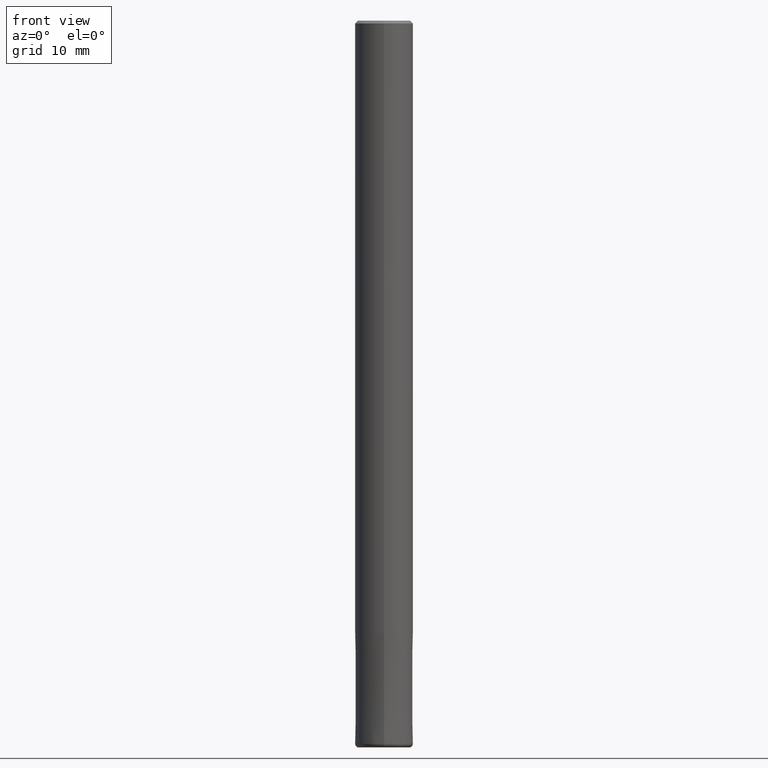
[diagram: clean part render]
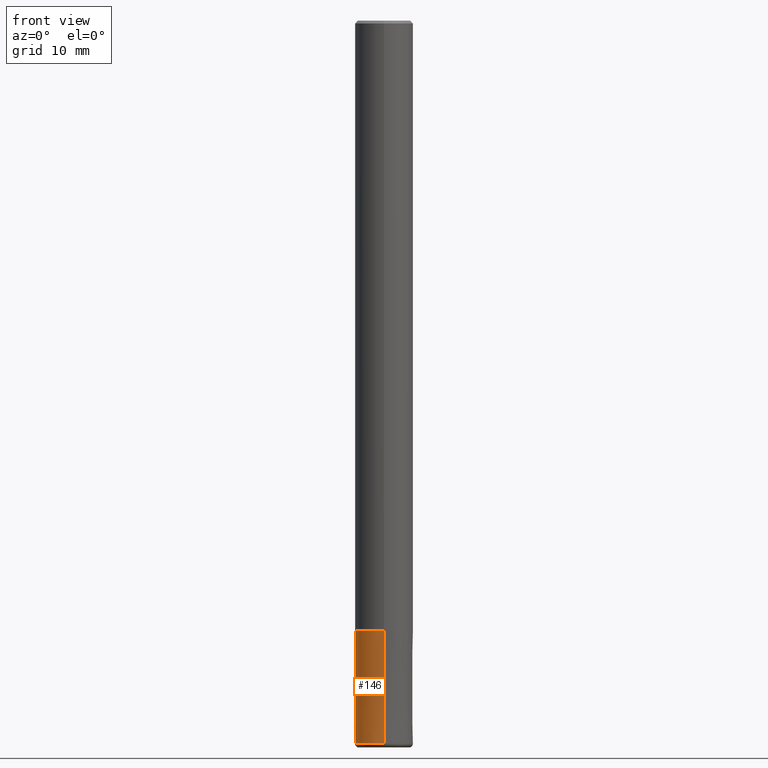
[diagram: same view with one face highlighted and labeled with its STEP entity id]
A machine part, front view. The second image highlights one B-rep face of the part: STEP entity #146.
In plain terms, the highlighted conical surface has half-angle 0 deg.
Its self-contained STEP definition (entity closure, byte-faithful):
#72=EDGE_CURVE('',#90,#154,#177,.T.);
#76=VERTEX_POINT('',#181);
#90=VERTEX_POINT('',#199);
#96=EDGE_CURVE('',#76,#108,#205,.T.);
#108=VERTEX_POINT('',#217);
#130=EDGE_CURVE('',#108,#154,#241,.T.);
#146=ADVANCED_FACE('',(#260),#261,.T.);
#148=EDGE_CURVE('',#90,#76,#263,.T.);
#154=VERTEX_POINT('',#270);
#177=CIRCLE('',#286,4.0);
#181=CARTESIAN_POINT('',(4.89830295465413E-016,-3.9999,-84.0));
#199=CARTESIAN_POINT('',(4.89842541528951E-016,-4.0,-99.5));
#205=CIRCLE('',#317,3.9999);
#217=CARTESIAN_POINT('',(0.0,3.9999,-84.0));
#241=LINE('',#365,#366);
#260=FACE_OUTER_BOUND('',#389,.T.);
#261=CONICAL_SURFACE('',#390,3.99995,6.45161290314991E-006);
#263=LINE('',#393,#394);
#270=CARTESIAN_POINT('',(0.0,4.0,-99.5));
#286=AXIS2_PLACEMENT_3D('',#412,#413,#414);
#317=AXIS2_PLACEMENT_3D('',#444,#445,#446);
#365=CARTESIAN_POINT('',(-4.89836418497182E-016,3.99995,-91.75));
#366=VECTOR('',#486,1.0);
#389=EDGE_LOOP('',(#520,#521,#522,#523));
#390=AXIS2_PLACEMENT_3D('',#524,#525,#526);
#393=CARTESIAN_POINT('',(4.89836418497182E-016,-3.99995,-91.75));
#394=VECTOR('',#527,1.0);
#412=CARTESIAN_POINT('',(0.0,0.0,-99.5));
#413=DIRECTION('',(0.0,0.0,-1.0));
#414=DIRECTION('',(0.0,1.0,0.0));
#444=CARTESIAN_POINT('',(0.0,0.0,-84.0));
#445=DIRECTION('',(0.0,0.0,-1.0));
#446=DIRECTION('',(0.0,1.0,0.0));
#486=DIRECTION('',(-7.900686153545E-022,6.45161290310515E-006,-0.999999999979188));
#520=ORIENTED_EDGE('',*,*,#130,.T.);
#521=ORIENTED_EDGE('',*,*,#72,.F.);
#522=ORIENTED_EDGE('',*,*,#148,.T.);
#523=ORIENTED_EDGE('',*,*,#96,.T.);
#524=CARTESIAN_POINT('',(0.0,0.0,-91.75));
#525=DIRECTION('',(0.0,-0.0,-1.0));
#526=DIRECTION('',(0.0,1.0,0.0));
#527=DIRECTION('',(-7.900686153545E-022,6.45161290310515E-006,0.999999999979188));